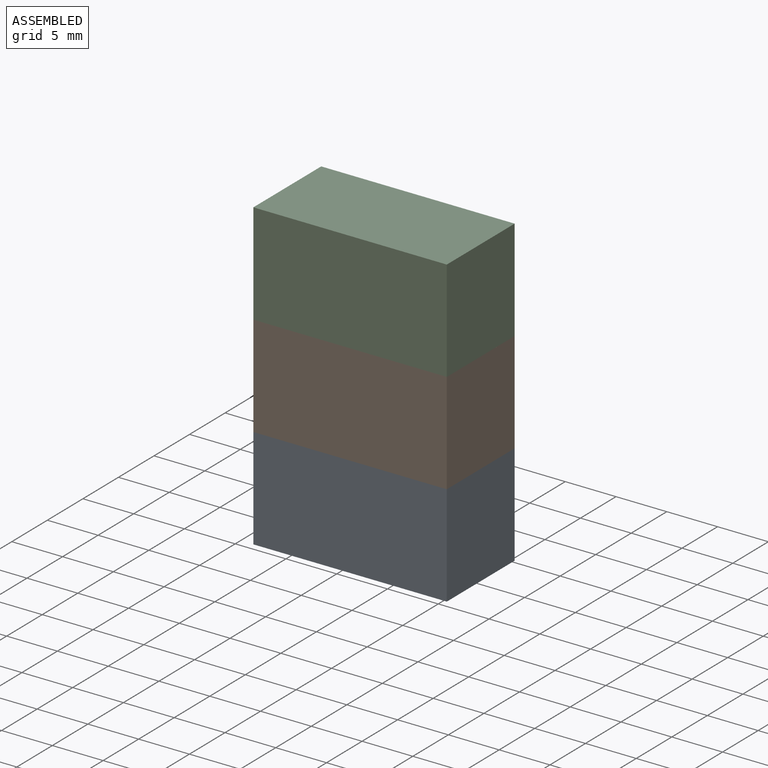
[diagram: assembled view]
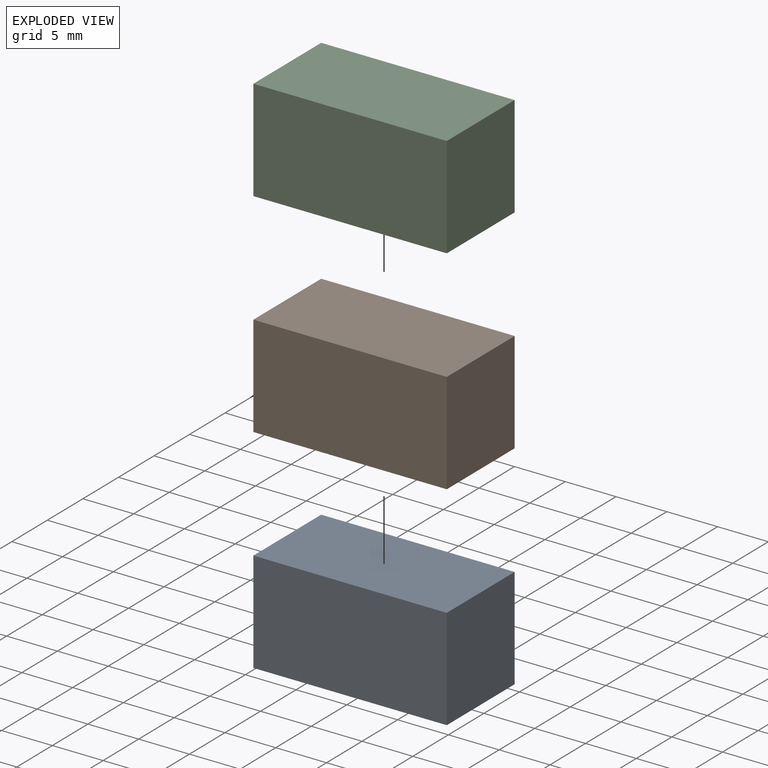
[diagram: exploded view]
GUIDED TOUR — FREECAD ASSEMBLY "test"

This assembly has 3 components, labeled P0..P2 below (a component is one placed body or linked part; the same part can appear more than once), held together by 0 modeled joints plus 2 derived contact edges. A joint is a constraint between two components; its type names the relative motion it leaves free:
  CONTACT — a derived adjacency edge — the two components touch in the source model (clearance under 2% of the assembly's diagonal); it is measured from the geometry, not a modeled constraint.
Axis/direction vectors are unit vectors and 'through' points are millimeter coordinates, both in the assembly's world frame.

MATES
  1. CONTACT "contact_0_1": P0 <-> P1, contact direction (0.000, 0.000, 1.000) through (9.53, 0.00, 5.00) mm (derived from contact, not a modeled constraint)
  2. CONTACT "contact_1_2": P1 <-> P2, contact direction (0.000, 0.000, 1.000) through (9.52, 0.00, 15.00) mm (derived from contact, not a modeled constraint)

ASSEMBLY ORDER
  1. P1 — the base component [order verified]
  2. P0 [order verified]
  3. P2 [order verified]
Order-tag legend:
  [order verified] — this step's position reverses a verified removal order: the component was checked to insert without passing through the ones already placed.

Of the 3 components, 3 carry a construction recipe — the FreeCAD feature program (sketches with constraints, then the solid features that consume them) that regenerates the part from scratch, quoted from this document or from the linked companion document it references; the rest are supplied as boundary geometry only. The tour below walks the components in assembly order: each is shown spotlighted twice — in the assembled view, then in the exploded view, where a leader line traces a displaced component back to its assembled socket (components that stay in place when exploded have no leader line; saturated green if recipe-attached, orange if geometry-only; every other component desaturated gray) — followed by its recipe or geometry summary and the mates that hold it.
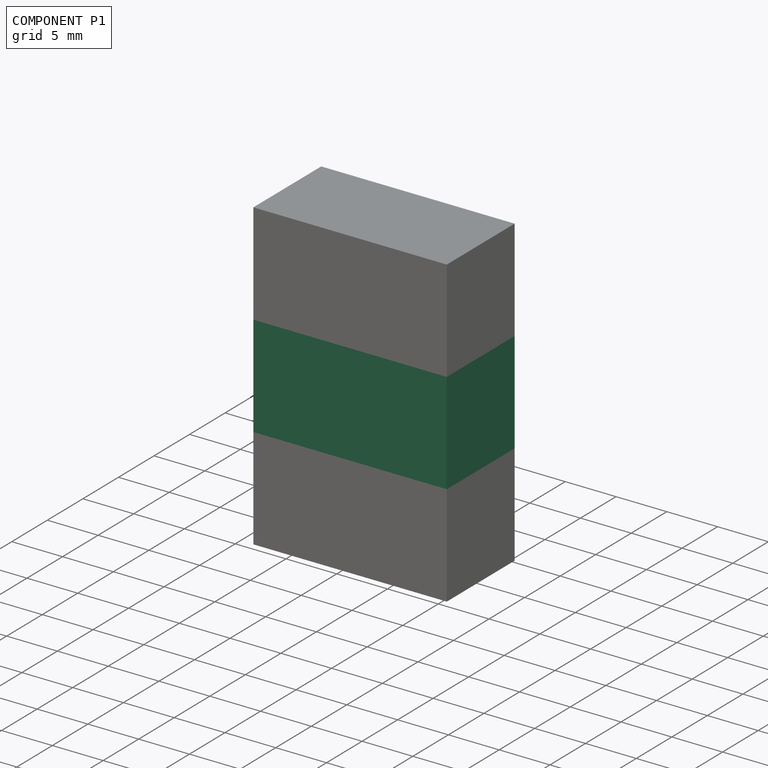
[diagram: component P1 — assembled]
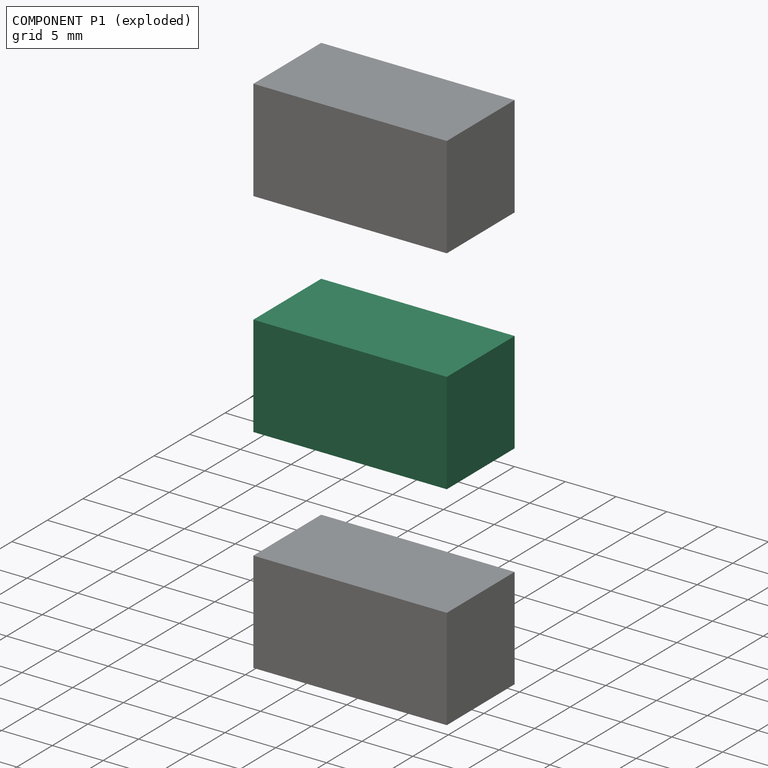
[diagram: component P1 — exploded]
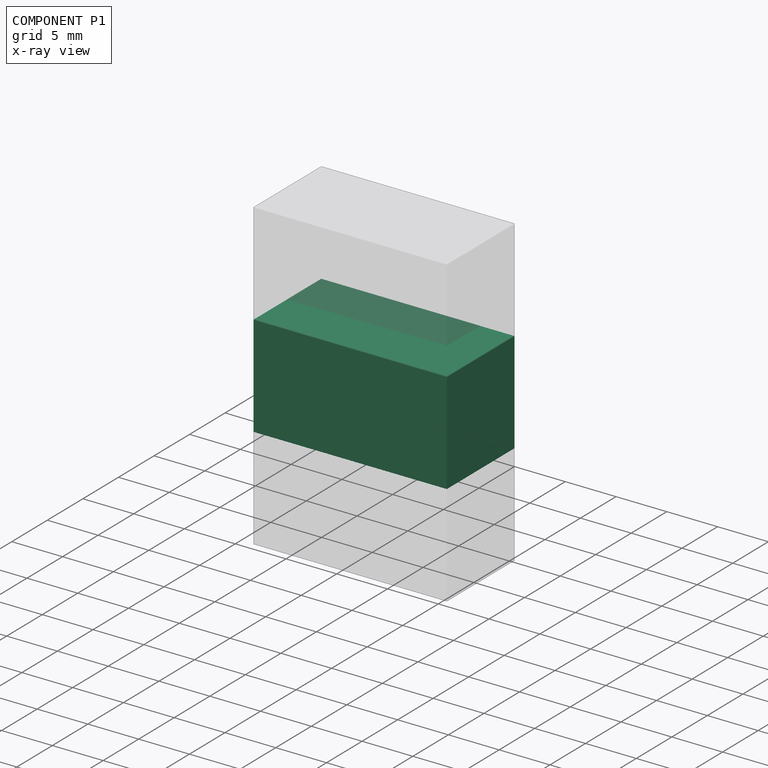
[diagram: component P1 — x-ray view]
COMPONENT P1 — recipe-attached ("CMP_waveguide2", a linked part whose construction recipe lives in a companion FreeCAD document of the same project; that document's serialized recipe follows).
Held by: resting contact with P0 (derived edge); resting contact with P2 (derived edge).
Construction recipe (the companion document, serialized — sketch geometry with constraints, then the solid features built on it; lengths are millimeters unless a unit is written):

FCSTD DOCUMENT  (FreeCAD 0.21R39043 (Git))
Label: waveguide2
License: All rights reserved
LicenseURL: https://en.wikipedia.org/wiki/All_rights_reserved
objects: Sketcher::SketchObject×2, PartDesign::Body×2, PartDesign::Pad×1, Part::SubShapeBinder×1, PartDesign::Extrusion×1, App::Part×1
note: 13 computed .brp shape members not serialized (recipe doc carries the construction recipe); baked Part::Feature solids carry a one-line shape summary decoded from their .brp

FEATURE [Sketcher::SketchObject] Sketch
  ArcFitTolerance = 1e-06
  AttachmentSupport = -> [XZ_Plane]
  ExternalBSplineMaxDegree = 5
  ExternalBSplineTolerance = 0.0001
  FixShape = 1
  FullyConstrained = true
  InternalTolerance = 1e-06
  InvalidShape = false
  MakeInternals = false
  MapMode = 5
  Placement = pos=(0,0,0) rot=(1,0,0;1.5708rad)
  Support = -> [XZ_Plane]
  TreeRank = 14
  ValidateShape = false
  sketch-geometry (4):
    g0: LineSegment StartX=-9.525 StartY=5 StartZ=0 EndX=9.525 EndY=5 EndZ=0
    g1: LineSegment StartX=9.525 StartY=5 StartZ=0 EndX=9.525 EndY=-5 EndZ=0
    g2: LineSegment StartX=9.525 StartY=-5 StartZ=0 EndX=-9.525 EndY=-5 EndZ=0
    g3: LineSegment StartX=-9.525 StartY=-5 StartZ=0 EndX=-9.525 EndY=5 EndZ=0
  constraints (11):
    c: Coincident(g0,g1)
    c: Coincident(g1,g2)
    c: Coincident(g2,g3)
    c: Coincident(g3,g0)
    c: Horizontal(g0)
    c: Horizontal(g2)
    c: Vertical(g1)
    c: DistanceY(g3,g3) = 10
    c: DistanceX(g2,g2) = 19.05
    c: Vertical(g3)
    c: Symmetric(g0,g2,g-1)
FEATURE [PartDesign::Pad] Pad
  AddSubType = 0
  AlongSketchNormal = false
  AutoTaperInnerAngle = true
  CheckUpToFaceLimits = true
  ClaimChildren = false
  Direction = (0,-1,0)
  Fit = 0
  FitJoin = 0
  FixShape = 1
  InnerFit = 0
  InnerFitJoin = 0
  InvalidShape = false
  Length = 9.54
  Length2 = 10
  Linearize = true
  NewSolid = false
  Profile = -> Sketch
  ReferenceAxis = -> Sketch [N_Axis]
  Suppress = false
  TaperInnerAngle = 0
  TaperInnerAngleRev = 0
  TreeRank = 15
  Type = 0
  ValidateShape = true
  _ProfileBasedVersion = 1
FEATURE [PartDesign::Body] Body  label="DIEL_CAVITY"
  AutoGroupSolids = false
  ClaimAllChildren = false
  ExportMode = 0
  FixShape = 1
  Group = -> [Sketch,Pad]
  InvalidShape = false
  Origin = -> Origin001
  Tip = -> Pad
  TreeRank = 13
  ValidateShape = false
  _ExportChildren = -> [Pad]
  _GroupVersion = 1
FEATURE [Part::SubShapeBinder] Import  label="Import(Pad)"
  BindCopyOnChange = 0
  BindMode = 0
  ClaimChildren = false
  Context = -> Part [Body001.Import.]
  EdgeTolerance = 1e-06
  FillStyle = 0
  FixShape = 1
  Fuse = false
  Group_EnableExport = false
  InvalidShape = false
  MakeFace = false
  MergeEdges = true
  OffsetFill = false
  OffsetIntersection = false
  OffsetJoinType = 0
  OffsetOpenResult = false
  Outline = false
  PartialLoad = false
  Relative = true
  SplitEdges = false
  Support = -> [Body[Pad.]]
  TightBound = false
  TreeRank = 26
  ValidateShape = false
  _Version = 8
FEATURE [Sketcher::SketchObject] Sketch001
  ArcFitTolerance = 1e-06
  AttachmentSupport = -> [Import]
  ExternalBSplineMaxDegree = 5
  ExternalBSplineTolerance = 0.0001
  ExternalGeometry = -> [Import]
  FixShape = 1
  FullyConstrained = true
  Group_EnableExport = false
  InternalTolerance = 1e-06
  InvalidShape = false
  MakeInternals = false
  MapMode = 5
  Placement = pos=(0,-1.1e-15,-5) rot=(1,0,0;3.14159rad)
  Support = -> [Import]
  TreeRank = 27
  ValidateShape = false
  sketch-geometry (1):
    g0: LineSegment StartX=-9.525 StartY=4.77 StartZ=0 EndX=9.525 EndY=4.77 EndZ=0
  constraints (2):
    c: Symmetric(g-3,g-3,g0)
    c: Symmetric(g-4,g-4,g0)
FEATURE [PartDesign::Extrusion] Extrusion
  AddSubType = 0
  AlongSketchNormal = false
  AutoTaperInnerAngle = true
  CheckUpToFaceLimits = true
  ClaimChildren = false
  Direction = (0,-2e-16,-1)
  Fit = 0
  FitJoin = 0
  FixShape = 1
  Group_EnableExport = true
  InnerFit = 0
  InnerFitJoin = 0
  InvalidShape = false
  Length = 10
  Length2 = 10
  Linearize = true
  NewSolid = false
  Profile = -> Sketch001
  ReferenceAxis = -> Sketch001 [N_Axis]
  Reversed = true
  Suppress = false
  TaperInnerAngle = 0
  TaperInnerAngleRev = 0
  TreeRank = 28
  Type = 0
  ValidateShape = true
  _ProfileBasedVersion = 1
FEATURE [PartDesign::Body] Body001  label="SPLIT_1"
  AutoGroupSolids = false
  ClaimAllChildren = false
  ExportMode = 2
  FixShape = 1
  Group = -> [Import,Sketch001,Extrusion]
  InvalidShape = false
  Origin = -> Origin002
  TreeRank = 25
  ValidateShape = false
  _ExportChildren = -> [Import,Sketch001,Extrusion]
  _GroupVersion = 1
FEATURE [App::Part] Part  label="CMP_waveguide2"
  ClaimAllChildren = false
  ExportMode = 1
  Group = -> [Body,Body001]
  Origin = -> Origin
  TreeRank = 3
  _ExportChildren = -> [Body,Body001]
  _GroupVersion = 1
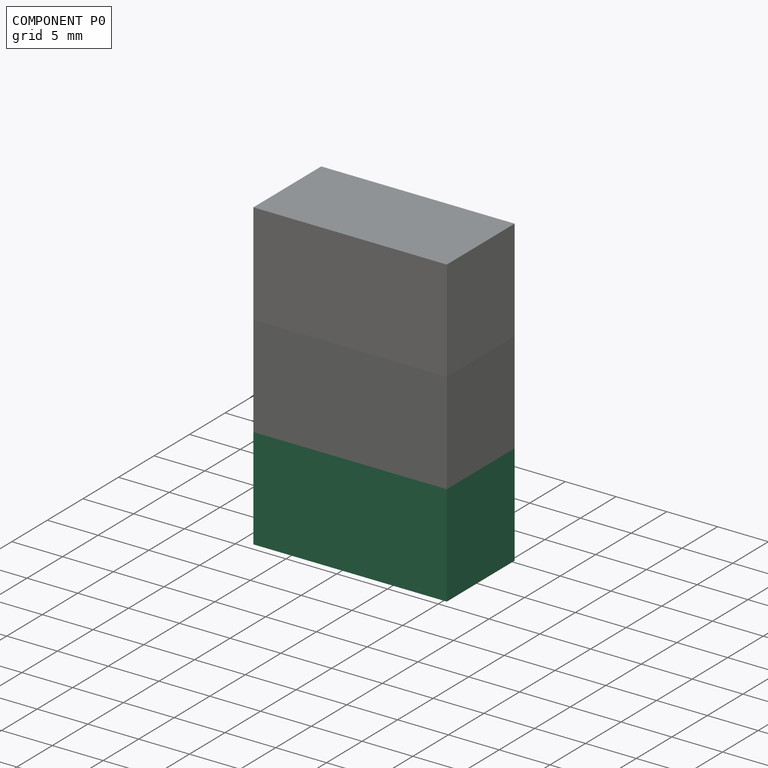
[diagram: component P0 — assembled]
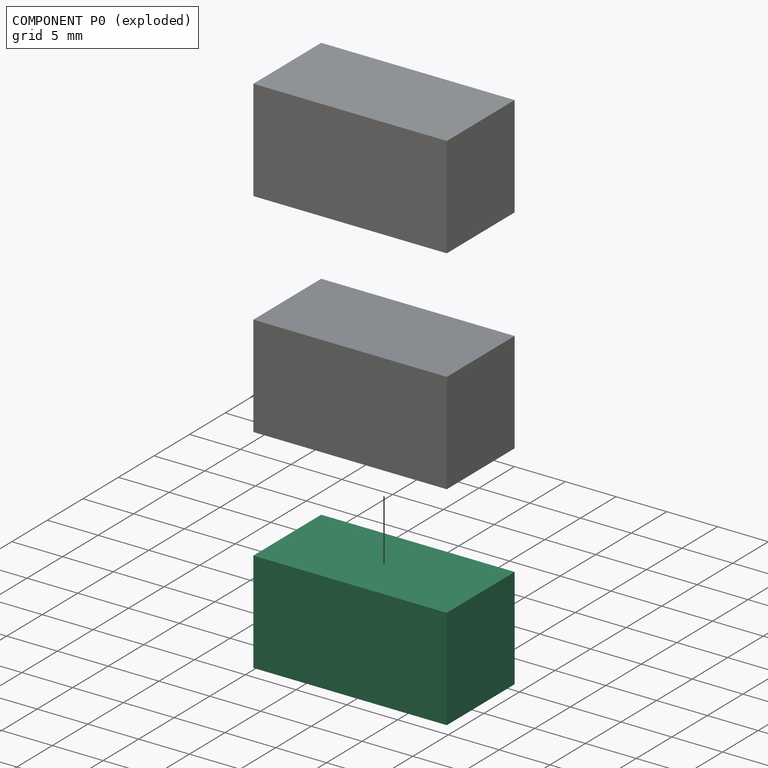
[diagram: component P0 — exploded]
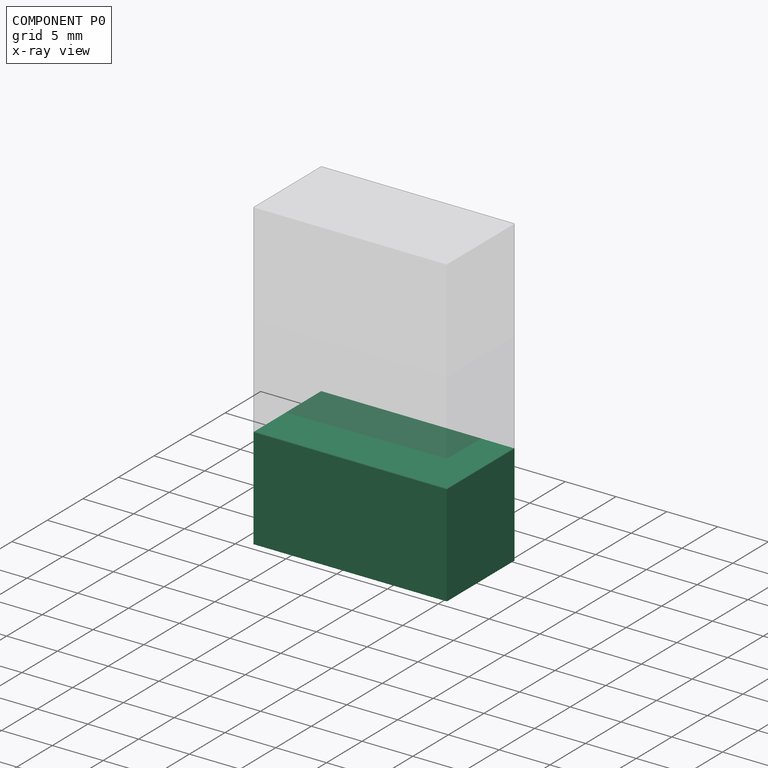
[diagram: component P0 — x-ray view]
COMPONENT P0 — recipe-attached ("CMP_waveguide1", a linked part whose construction recipe lives in a companion FreeCAD document of the same project; that document's serialized recipe follows).
Held by: resting contact with P1 (derived edge).
Construction recipe (the companion document, serialized — sketch geometry with constraints, then the solid features built on it; lengths are millimeters unless a unit is written):

FCSTD DOCUMENT  (FreeCAD 0.21R39043 (Git))
Label: waveguide1
License: All rights reserved
LicenseURL: https://en.wikipedia.org/wiki/All_rights_reserved
objects: PartDesign::Body×3, Sketcher::SketchObject×2, PartDesign::Pad×1, PartDesign::SubShapeBinder×1, Part::SubShapeBinder×1, PartDesign::Extrusion×1, App::Part×1
note: 15 computed .brp shape members not serialized (recipe doc carries the construction recipe); baked Part::Feature solids carry a one-line shape summary decoded from their .brp
EXTERNAL_REF file=test.FCStd obj=Assembly

FEATURE [Sketcher::SketchObject] Sketch
  ArcFitTolerance = 1e-06
  AttachmentSupport = -> [XZ_Plane]
  ExternalBSplineMaxDegree = 5
  ExternalBSplineTolerance = 0.0001
  FixShape = 1
  FullyConstrained = true
  InternalTolerance = 1e-06
  InvalidShape = false
  MakeInternals = false
  MapMode = 5
  Placement = pos=(0,0,0) rot=(1,0,0;1.5708rad)
  Support = -> [XZ_Plane]
  TreeRank = 14
  ValidateShape = false
  sketch-geometry (4):
    g0: LineSegment StartX=-9.525 StartY=5 StartZ=0 EndX=9.525 EndY=5 EndZ=0
    g1: LineSegment StartX=9.525 StartY=5 StartZ=0 EndX=9.525 EndY=-5 EndZ=0
    g2: LineSegment StartX=9.525 StartY=-5 StartZ=0 EndX=-9.525 EndY=-5 EndZ=0
    g3: LineSegment StartX=-9.525 StartY=-5 StartZ=0 EndX=-9.525 EndY=5 EndZ=0
  constraints (11):
    c: Coincident(g0,g1)
    c: Coincident(g1,g2)
    c: Coincident(g2,g3)
    c: Coincident(g3,g0)
    c: Horizontal(g0)
    c: Horizontal(g2)
    c: Vertical(g1)
    c: DistanceY(g3,g3) = 10
    c: DistanceX(g2,g2) = 19.05
    c: Vertical(g3)
    c: Symmetric(g0,g2,g-1)
FEATURE [PartDesign::Pad] Pad
  AddSubType = 0
  AlongSketchNormal = false
  AutoTaperInnerAngle = true
  CheckUpToFaceLimits = true
  ClaimChildren = false
  Direction = (0,-1,0)
  Fit = 0
  FitJoin = 0
  FixShape = 1
  InnerFit = 0
  InnerFitJoin = 0
  InvalidShape = false
  Length = 9.54
  Length2 = 10
  Linearize = true
  NewSolid = false
  Profile = -> Sketch
  ReferenceAxis = -> Sketch [N_Axis]
  Suppress = false
  TaperInnerAngle = 0
  TaperInnerAngleRev = 0
  TreeRank = 15
  Type = 0
  ValidateShape = true
  _ProfileBasedVersion = 1
FEATURE [PartDesign::Body] Body  label="DIEL_CAVITY"
  AutoGroupSolids = false
  ClaimAllChildren = false
  ExportMode = 0
  FixShape = 1
  Group = -> [Sketch,Pad]
  InvalidShape = false
  Origin = -> Origin001
  Tip = -> Pad
  TreeRank = 13
  ValidateShape = false
  _ExportChildren = -> [Pad]
  _GroupVersion = 1
FEATURE [PartDesign::SubShapeBinder] Binder  label="Binder(Pad)"
  BindCopyOnChange = 0
  BindMode = 0
  ClaimChildren = false
  Context = -> Part [Body001.Binder.]
  EdgeTolerance = 1e-06
  FillStyle = 0
  FixShape = 1
  Fuse = false
  Group_EnableExport = true
  InvalidShape = false
  MakeFace = true
  MergeEdges = true
  OffsetFill = false
  OffsetIntersection = false
  OffsetJoinType = 0
  OffsetOpenResult = false
  Outline = false
  PartialLoad = false
  Relative = true
  SplitEdges = false
  Support = -> [Body[Pad.Face3]]
  TightBound = false
  TreeRank = 37
  ValidateShape = false
  _Version = 8
FEATURE [PartDesign::Body] Body001  label="WGP_1"
  AutoGroupSolids = false
  ClaimAllChildren = false
  ExportMode = 2
  FixShape = 1
  Group = -> [Binder]
  InvalidShape = false
  Origin = -> Origin002
  TreeRank = 25
  ValidateShape = false
  _ExportChildren = -> [Binder]
  _GroupVersion = 1
FEATURE [Part::SubShapeBinder] Import  label="Import(Pad)"
  BindCopyOnChange = 0
  BindMode = 0
  ClaimChildren = false
  Context = -> <external test.FCStd>#Assembly [Parts.Link.Body002.Import.]
  EdgeTolerance = 1e-06
  FillStyle = 0
  FixShape = 1
  Fuse = false
  Group_EnableExport = false
  InvalidShape = false
  MakeFace = false
  MergeEdges = true
  OffsetFill = false
  OffsetIntersection = false
  OffsetJoinType = 0
  OffsetOpenResult = false
  Outline = false
  PartialLoad = false
  Relative = true
  SplitEdges = false
  Support = -> [Body[Pad.]]
  TightBound = false
  TreeRank = 49
  ValidateShape = false
  _Version = 8
FEATURE [Sketcher::SketchObject] Sketch001
  ArcFitTolerance = 1e-06
  AttachmentSupport = -> [XZ_Plane002]
  ExternalBSplineMaxDegree = 5
  ExternalBSplineTolerance = 0.0001
  ExternalGeometry = -> [Import]
  FixShape = 1
  FullyConstrained = true
  Group_EnableExport = false
  InternalTolerance = 1e-06
  InvalidShape = false
  MakeInternals = false
  MapMode = 5
  Placement = pos=(0,0,0) rot=(1,0,0;1.5708rad)
  Support = -> [XZ_Plane002]
  TreeRank = 48
  ValidateShape = false
  sketch-geometry (1):
    g0: LineSegment StartX=-9.525 StartY=0 StartZ=0 EndX=9.525 EndY=0 EndZ=0
  constraints (4):
    c: PointOnObject(g0,g-3)
    c: PointOnObject(g0,g-4)
    c: Horizontal(g0)
    c: PointOnObject(g-1,g0)
FEATURE [PartDesign::Extrusion] Extrusion
  AddSubType = 0
  AlongSketchNormal = false
  AutoTaperInnerAngle = true
  CheckUpToFaceLimits = true
  ClaimChildren = false
  Direction = (0,-1,2e-16)
  Fit = 0
  FitJoin = 0
  FixShape = 1
  Group_EnableExport = true
  InnerFit = 0
  InnerFitJoin = 0
  InvalidShape = false
  Length = 9.54
  Length2 = 10
  Linearize = true
  NewSolid = false
  Profile = -> Sketch001
  ReferenceAxis = -> Sketch001 [N_Axis]
  Suppress = false
  TaperInnerAngle = 0
  TaperInnerAngleRev = 0
  TreeRank = 50
  Type = 0
  ValidateShape = true
  _ProfileBasedVersion = 1
FEATURE [PartDesign::Body] Body002  label="SPLIT_1"
  AutoGroupSolids = false
  ClaimAllChildren = false
  ExportMode = 2
  FixShape = 1
  Group = -> [Sketch001,Import,Extrusion]
  InvalidShape = false
  Origin = -> Origin003
  TreeRank = 47
  ValidateShape = false
  _ExportChildren = -> [Sketch001,Import,Extrusion]
  _GroupVersion = 1
FEATURE [App::Part] Part  label="CMP_waveguide1"
  ClaimAllChildren = false
  ExportMode = 1
  Group = -> [Body,Body001,Body002]
  Origin = -> Origin
  TreeRank = 3
  _ExportChildren = -> [Body,Body001,Body002]
  _GroupVersion = 1
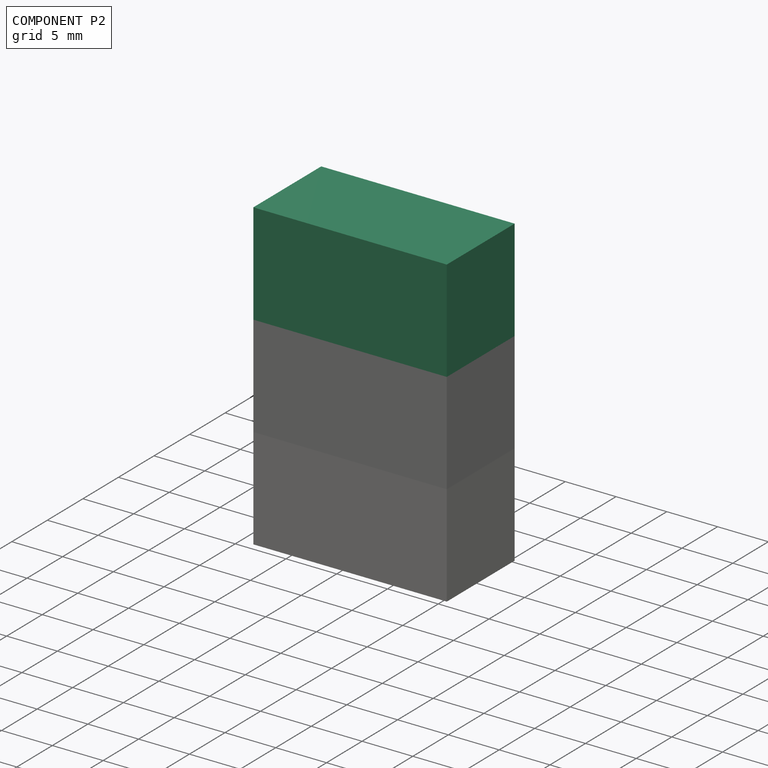
[diagram: component P2 — assembled]
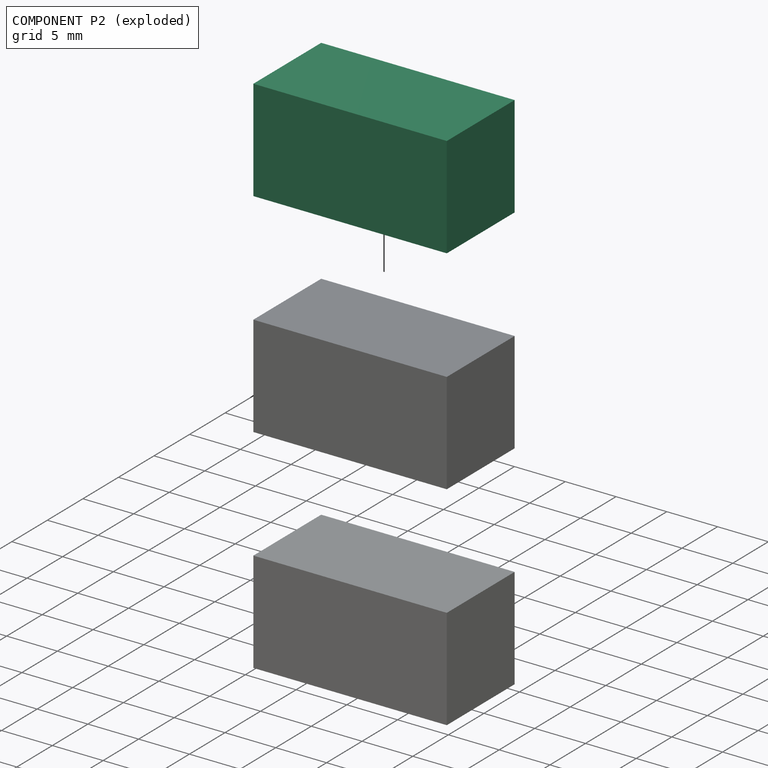
[diagram: component P2 — exploded]
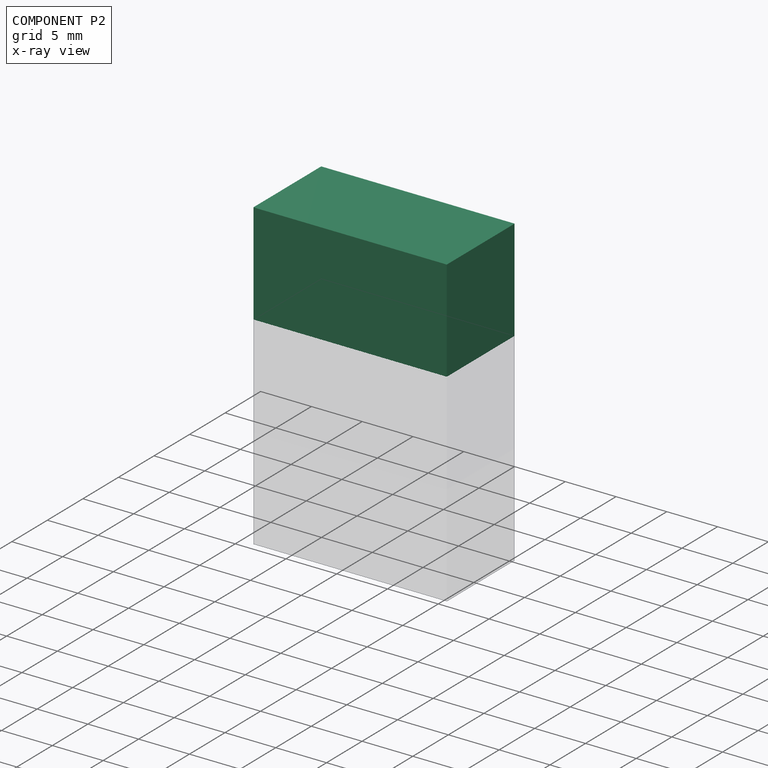
[diagram: component P2 — x-ray view]
COMPONENT P2 — recipe-attached ("CMP_waveguide3", a linked part whose construction recipe lives in a companion FreeCAD document of the same project; that document's serialized recipe follows).
Held by: resting contact with P1 (derived edge).
Construction recipe (the companion document, serialized — sketch geometry with constraints, then the solid features built on it; lengths are millimeters unless a unit is written):

FCSTD DOCUMENT  (FreeCAD 0.21R38998 (Git))
Label: waveguide3
License: All rights reserved
LicenseURL: https://en.wikipedia.org/wiki/All_rights_reserved
objects: PartDesign::Body×2, Sketcher::SketchObject×1, PartDesign::Pad×1, PartDesign::SubShapeBinder×1, App::Part×1
note: 8 computed .brp shape members not serialized (recipe doc carries the construction recipe); baked Part::Feature solids carry a one-line shape summary decoded from their .brp

FEATURE [Sketcher::SketchObject] Sketch
  ArcFitTolerance = 1e-06
  AttachmentSupport = -> [XZ_Plane]
  ExternalBSplineMaxDegree = 5
  ExternalBSplineTolerance = 0.0001
  FixShape = 1
  FullyConstrained = true
  InternalTolerance = 1e-06
  InvalidShape = false
  MakeInternals = false
  MapMode = 5
  Placement = pos=(0,0,0) rot=(1,0,0;1.5708rad)
  Support = -> [XZ_Plane]
  TreeRank = 14
  ValidateShape = false
  sketch-geometry (4):
    g0: LineSegment StartX=-9.525 StartY=5 StartZ=0 EndX=9.525 EndY=5 EndZ=0
    g1: LineSegment StartX=9.525 StartY=5 StartZ=0 EndX=9.525 EndY=-5 EndZ=0
    g2: LineSegment StartX=9.525 StartY=-5 StartZ=0 EndX=-9.525 EndY=-5 EndZ=0
    g3: LineSegment StartX=-9.525 StartY=-5 StartZ=0 EndX=-9.525 EndY=5 EndZ=0
  constraints (11):
    c: Coincident(g0,g1)
    c: Coincident(g1,g2)
    c: Coincident(g2,g3)
    c: Coincident(g3,g0)
    c: Horizontal(g0)
    c: Horizontal(g2)
    c: Vertical(g1)
    c: DistanceY(g3,g3) = 10
    c: DistanceX(g2,g2) = 19.05
    c: Vertical(g3)
    c: Symmetric(g0,g2,g-1)
FEATURE [PartDesign::Pad] Pad
  AddSubType = 0
  AlongSketchNormal = false
  AutoTaperInnerAngle = true
  CheckUpToFaceLimits = true
  ClaimChildren = false
  Direction = (0,-1,0)
  Fit = 0
  FitJoin = 0
  FixShape = 1
  InnerFit = 0
  InnerFitJoin = 0
  InvalidShape = false
  Length = 9.54
  Length2 = 10
  Linearize = true
  NewSolid = false
  Profile = -> Sketch
  ReferenceAxis = -> Sketch [N_Axis]
  Suppress = false
  TaperInnerAngle = 0
  TaperInnerAngleRev = 0
  TreeRank = 15
  Type = 0
  ValidateShape = true
  _ProfileBasedVersion = 1
FEATURE [PartDesign::Body] Body  label="DIEL_CAVITY"
  AutoGroupSolids = false
  ClaimAllChildren = false
  ExportMode = 0
  FixShape = 1
  Group = -> [Sketch,Pad]
  InvalidShape = false
  Origin = -> Origin001
  Tip = -> Pad
  TreeRank = 13
  ValidateShape = false
  _ExportChildren = -> [Pad]
  _GroupVersion = 1
FEATURE [PartDesign::SubShapeBinder] Binder  label="Binder(Pad)"
  BindCopyOnChange = 0
  BindMode = 0
  ClaimChildren = false
  Context = -> Part [Body001.Binder.]
  EdgeTolerance = 1e-06
  FillStyle = 0
  FixShape = 1
  Fuse = false
  Group_EnableExport = true
  InvalidShape = false
  MakeFace = true
  MergeEdges = true
  OffsetFill = false
  OffsetIntersection = false
  OffsetJoinType = 0
  OffsetOpenResult = false
  Outline = false
  PartialLoad = false
  Relative = true
  SplitEdges = false
  Support = -> [Body[Pad.Face1]]
  TightBound = false
  TreeRank = 26
  ValidateShape = false
  _Version = 8
FEATURE [PartDesign::Body] Body001  label="WGP_1"
  AutoGroupSolids = false
  ClaimAllChildren = false
  ExportMode = 2
  FixShape = 1
  Group = -> [Binder]
  InvalidShape = false
  Origin = -> Origin002
  TreeRank = 25
  ValidateShape = false
  _ExportChildren = -> [Binder]
  _GroupVersion = 1
FEATURE [App::Part] Part  label="CMP_waveguide3"
  ClaimAllChildren = false
  ExportMode = 1
  Group = -> [Body,Body001]
  Origin = -> Origin
  TreeRank = 3
  _ExportChildren = -> [Body,Body001]
  _GroupVersion = 1
PROVENANCE & LICENSES
Assembly and component geometry: a FreeCAD (.FCStd) document from a public repository crawl; components, placements and joints were extracted with FreeCAD and each solid tessellated.
Construction recipes: the document's own serialized feature recipes (and, for linked parts, the recipes of companion documents from the same project).
License: lgpl-3.0.
Joints: native FreeCAD joints and A2plus constraints are mapped to standard mate types; edges marked 'derived from contact' connect touching components and are measured from the geometry, not modeled.
Verification: 3 of this assembly's 3 components carry a construction recipe (3 from linked companion documents in the same project); the rest are geometry-only. Every component's tessellation passed the extraction mesh gates (mesh-volume checksum against the B-rep where available, bounding-box inflation <= 2%).
Renders: orthographic iso camera (az 35 / el 25); the floor grid conveys scale (grid pitch printed in each image; no ruler). In the exploded view each component is displaced by its stored offset vector: the offsets alone carry the explosion direction (mate normal/axis signs are not orientation cues and do not encode it), and separation distances are assigned per mate-chain, not proportionally to assembly-order depth.
